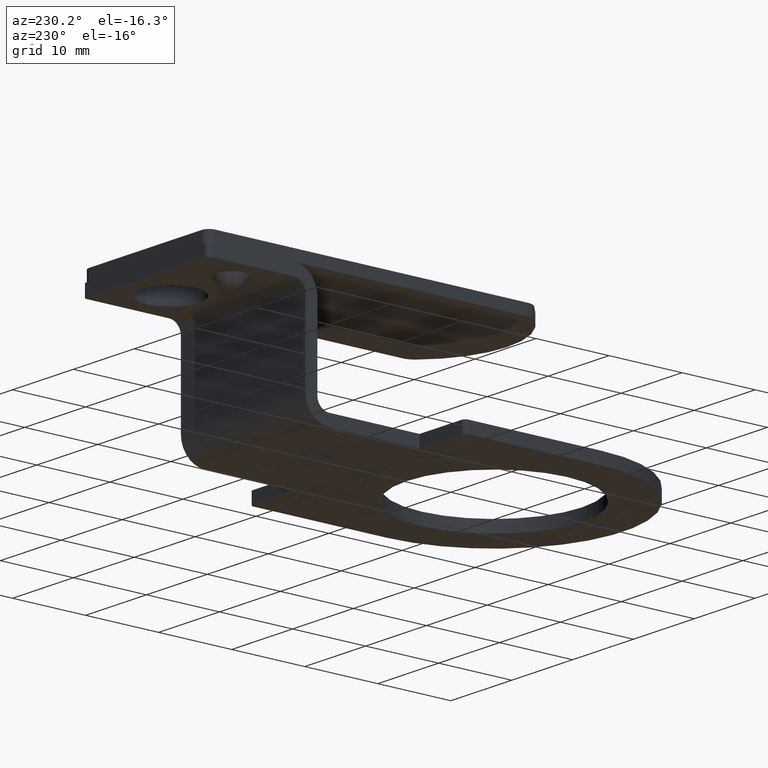
[diagram: clean part render]
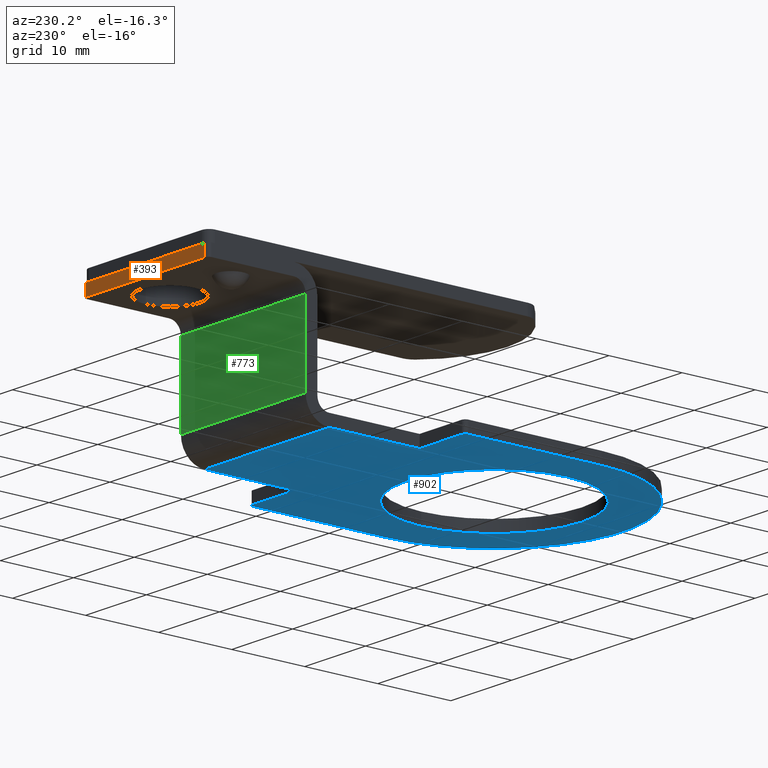
[diagram: same view with three faces highlighted in distinct colors, each labeled with its STEP entity id]
A machine part, auxiliary view with three faces highlighted in distinct colors.
Their STEP definitions:

[orange] entity #393 — the highlighted planar face has unit normal (0, 1, 0).
#328=CARTESIAN_POINT('',(-6.973034844879960,29.491234150719997,17.250000000000000));
#329=VERTEX_POINT('',#328);
#337=CARTESIAN_POINT('',(-6.973034844879960,29.491234150719997,15.649999999999999));
#338=VERTEX_POINT('',#337);
#339=CARTESIAN_POINT('',(-6.973034844879960,29.491234150719997,17.250000000000000));
#340=DIRECTION('',(0.0,0.0,-1.0));
#341=VECTOR('',#340,1.600000000000001);
#342=LINE('',#339,#341);
#343=EDGE_CURVE('',#329,#338,#342,.T.);
#363=CARTESIAN_POINT('',(-7.473034844879960,29.491234150719997,17.250000000000000));
#364=DIRECTION('',(0.0,1.0,0.0));
#365=DIRECTION('',(0.0,0.0,1.0));
#366=AXIS2_PLACEMENT_3D('',#363,#364,#365);
#367=PLANE('',#366);
#368=ORIENTED_EDGE('',*,*,#343,.F.);
#369=CARTESIAN_POINT('',(12.526965155120049,29.491234150719997,17.250000000000000));
#370=VERTEX_POINT('',#369);
#371=CARTESIAN_POINT('',(-6.973034844879960,29.491234150719997,17.250000000000000));
#372=DIRECTION('',(1.0,0.0,0.0));
#373=VECTOR('',#372,19.500000000000007);
#374=LINE('',#371,#373);
#375=EDGE_CURVE('',#329,#370,#374,.T.);
#376=ORIENTED_EDGE('',*,*,#375,.T.);
#377=CARTESIAN_POINT('',(12.526965155120049,29.491234150719997,15.649999999999999));
#378=VERTEX_POINT('',#377);
#379=CARTESIAN_POINT('',(12.526965155120049,29.491234150719997,15.649999999999999));
#380=DIRECTION('',(0.0,0.0,1.0));
#381=VECTOR('',#380,1.600000000000001);
#382=LINE('',#379,#381);
#383=EDGE_CURVE('',#378,#370,#382,.T.);
#384=ORIENTED_EDGE('',*,*,#383,.F.);
#385=CARTESIAN_POINT('',(-6.973034844879960,29.491234150719997,15.649999999999999));
#386=DIRECTION('',(1.0,0.0,0.0));
#387=VECTOR('',#386,19.500000000000007);
#388=LINE('',#385,#387);
#389=EDGE_CURVE('',#338,#378,#388,.T.);
#390=ORIENTED_EDGE('',*,*,#389,.F.);
#391=EDGE_LOOP('',(#368,#376,#384,#390));
#392=FACE_OUTER_BOUND('',#391,.T.);
#393=ADVANCED_FACE('',(#392),#367,.T.);

[blue] entity #902 — the highlighted planar face has unit normal (0, 0, 1).
#179=CARTESIAN_POINT('',(20.426965155120051,-0.008765849279999,0.0));
#180=VERTEX_POINT('',#179);
#187=CARTESIAN_POINT('',(19.926965155120048,0.491234150720001,0.0));
#188=VERTEX_POINT('',#187);
#189=CARTESIAN_POINT('',(19.926965155120048,-0.008765849279999,0.0));
#190=DIRECTION('',(0.0,0.0,1.000000000000000));
#191=DIRECTION('',(0.707106781186549,0.707106781186546,0.0));
#192=AXIS2_PLACEMENT_3D('',#189,#190,#191);
#193=CIRCLE('',#192,0.500000000000000);
#194=EDGE_CURVE('',#180,#188,#193,.T.);
#219=CARTESIAN_POINT('',(20.426965155120044,-18.258765849280003,0.0));
#220=VERTEX_POINT('',#219);
#227=CARTESIAN_POINT('',(20.426965155120044,-18.258765849280003,0.0));
#228=DIRECTION('',(0.0,1.0,0.0));
#229=VECTOR('',#228,18.250000000000004);
#230=LINE('',#227,#229);
#231=EDGE_CURVE('',#220,#180,#230,.T.);
#498=CARTESIAN_POINT('',(13.026965155120049,0.491234150719997,0.0));
#499=VERTEX_POINT('',#498);
#506=CARTESIAN_POINT('',(13.026965155120047,12.891234150719995,2.775558E-016));
#507=VERTEX_POINT('',#506);
#508=CARTESIAN_POINT('',(13.026965155120049,0.491234150719997,0.0));
#509=DIRECTION('',(0.0,1.0,0.0));
#510=VECTOR('',#509,12.399999999999999);
#511=LINE('',#508,#510);
#512=EDGE_CURVE('',#499,#507,#511,.T.);
#555=CARTESIAN_POINT('',(-14.373034844879953,0.491234150719993,0.0));
#556=VERTEX_POINT('',#555);
#563=CARTESIAN_POINT('',(-14.873034844879953,-0.008765849280008,0.0));
#564=VERTEX_POINT('',#563);
#565=CARTESIAN_POINT('',(-14.373034844879953,-0.008765849280008,0.0));
#566=DIRECTION('',(0.0,0.0,1.0));
#567=DIRECTION('',(-0.707106781186549,0.707106781186546,0.0));
#568=AXIS2_PLACEMENT_3D('',#565,#566,#567);
#569=CIRCLE('',#568,0.500000000000000);
#570=EDGE_CURVE('',#556,#564,#569,.T.);
#588=CARTESIAN_POINT('',(-7.473034844879951,0.491234150719997,0.0));
#589=VERTEX_POINT('',#588);
#596=CARTESIAN_POINT('',(-7.473034844879951,0.491234150719997,0.0));
#597=DIRECTION('',(-1.0,0.0,0.0));
#598=VECTOR('',#597,6.900000000000002);
#599=LINE('',#596,#598);
#600=EDGE_CURVE('',#589,#556,#599,.T.);
#661=CARTESIAN_POINT('',(-7.473034844879956,12.891234150719995,2.775558E-016));
#662=VERTEX_POINT('',#661);
#670=CARTESIAN_POINT('',(-7.473034844879956,12.891234150719995,2.775558E-016));
#671=DIRECTION('',(0.0,-1.0,0.0));
#672=VECTOR('',#671,12.399999999999999);
#673=LINE('',#670,#672);
#674=EDGE_CURVE('',#662,#589,#673,.T.);
#793=CARTESIAN_POINT('',(-7.473034844879956,12.891234150719995,2.775558E-016));
#794=DIRECTION('',(1.0,0.0,0.0));
#795=VECTOR('',#794,20.500000000000004);
#796=LINE('',#793,#795);
#797=EDGE_CURVE('',#662,#507,#796,.T.);
#811=CARTESIAN_POINT('',(14.776965155120047,-18.258765849280007,0.0));
#812=VERTEX_POINT('',#811);
#813=CARTESIAN_POINT('',(2.776965155120046,-18.258765849280007,0.0));
#814=DIRECTION('',(0.0,0.0,1.0));
#815=DIRECTION('',(-1.0,0.0,0.0));
#816=AXIS2_PLACEMENT_3D('',#813,#814,#815);
#817=CIRCLE('',#816,12.000000000000002);
#818=EDGE_CURVE('',#812,#812,#817,.T.);
#829=CARTESIAN_POINT('',(-14.873034844879951,-18.258765849280007,0.0));
#830=VERTEX_POINT('',#829);
#837=CARTESIAN_POINT('',(2.776965155120046,-18.258765849280007,0.0));
#838=DIRECTION('',(0.0,0.0,1.0));
#839=DIRECTION('',(-1.0,0.0,0.0));
#840=AXIS2_PLACEMENT_3D('',#837,#838,#839);
#841=CIRCLE('',#840,17.649999999999999);
#842=EDGE_CURVE('',#830,#220,#841,.T.);
#854=CARTESIAN_POINT('',(-14.873034844879953,-0.008765849280008,0.0));
#855=DIRECTION('',(0.0,-1.0,0.0));
#856=VECTOR('',#855,18.250000000000000);
#857=LINE('',#854,#856);
#858=EDGE_CURVE('',#564,#830,#857,.T.);
#871=CARTESIAN_POINT('',(19.926965155120048,0.491234150720001,0.0));
#872=DIRECTION('',(-1.0,0.0,0.0));
#873=VECTOR('',#872,6.899999999999999);
#874=LINE('',#871,#873);
#875=EDGE_CURVE('',#188,#499,#874,.T.);
#882=CARTESIAN_POINT('',(2.776965155120047,-8.225099792446088,0.0));
#883=DIRECTION('',(0.0,0.0,1.0));
#884=DIRECTION('',(1.0,0.0,0.0));
#885=AXIS2_PLACEMENT_3D('',#882,#883,#884);
#886=PLANE('',#885);
#887=ORIENTED_EDGE('',*,*,#194,.F.);
#888=ORIENTED_EDGE('',*,*,#231,.F.);
#889=ORIENTED_EDGE('',*,*,#842,.F.);
#890=ORIENTED_EDGE('',*,*,#858,.F.);
#891=ORIENTED_EDGE('',*,*,#570,.F.);
#892=ORIENTED_EDGE('',*,*,#600,.F.);
#893=ORIENTED_EDGE('',*,*,#674,.F.);
#894=ORIENTED_EDGE('',*,*,#797,.T.);
#895=ORIENTED_EDGE('',*,*,#512,.F.);
#896=ORIENTED_EDGE('',*,*,#875,.F.);
#897=EDGE_LOOP('',(#887,#888,#889,#890,#891,#892,#893,#894,#895,#896));
#898=FACE_OUTER_BOUND('',#897,.T.);
#899=ORIENTED_EDGE('',*,*,#818,.T.);
#900=EDGE_LOOP('',(#899));
#901=FACE_BOUND('',#900,.T.);
#902=ADVANCED_FACE('',(#898,#901),#886,.F.);

[green] entity #773 — the highlighted planar face has unit normal (0, 1, 0).
#514=CARTESIAN_POINT('',(13.026965155120047,16.091234150719998,3.199999999999998));
#515=VERTEX_POINT('',#514);
#523=CARTESIAN_POINT('',(13.026965155120047,16.091234150719998,14.050000000000001));
#524=VERTEX_POINT('',#523);
#525=CARTESIAN_POINT('',(13.026965155120047,16.091234150719998,14.050000000000001));
#526=DIRECTION('',(0.0,0.0,-1.0));
#527=VECTOR('',#526,10.850000000000003);
#528=LINE('',#525,#527);
#529=EDGE_CURVE('',#524,#515,#528,.T.);
#644=CARTESIAN_POINT('',(-7.473034844879960,16.091234150719998,14.050000000000001));
#645=VERTEX_POINT('',#644);
#653=CARTESIAN_POINT('',(-7.473034844879956,16.091234150719998,3.200000000000012));
#654=VERTEX_POINT('',#653);
#655=CARTESIAN_POINT('',(-7.473034844879956,16.091234150719998,3.200000000000012));
#656=DIRECTION('',(0.0,0.0,1.0));
#657=VECTOR('',#656,10.849999999999989);
#658=LINE('',#655,#657);
#659=EDGE_CURVE('',#654,#645,#658,.T.);
#713=CARTESIAN_POINT('',(-7.473034844879960,16.091234150719998,14.050000000000001));
#714=DIRECTION('',(1.0,0.0,0.0));
#715=VECTOR('',#714,20.500000000000007);
#716=LINE('',#713,#715);
#717=EDGE_CURVE('',#645,#524,#716,.T.);
#757=CARTESIAN_POINT('',(13.026965155120047,16.091234150719998,9.797174E-017));
#758=DIRECTION('',(0.0,1.0,0.0));
#759=DIRECTION('',(0.0,0.0,1.0));
#760=AXIS2_PLACEMENT_3D('',#757,#758,#759);
#761=PLANE('',#760);
#762=ORIENTED_EDGE('',*,*,#717,.T.);
#763=ORIENTED_EDGE('',*,*,#529,.T.);
#764=CARTESIAN_POINT('',(-7.473034844879956,16.091234150719998,3.200000000000012));
#765=DIRECTION('',(1.0,0.0,0.0));
#766=VECTOR('',#765,20.500000000000004);
#767=LINE('',#764,#766);
#768=EDGE_CURVE('',#654,#515,#767,.T.);
#769=ORIENTED_EDGE('',*,*,#768,.F.);
#770=ORIENTED_EDGE('',*,*,#659,.T.);
#771=EDGE_LOOP('',(#762,#763,#769,#770));
#772=FACE_OUTER_BOUND('',#771,.T.);
#773=ADVANCED_FACE('',(#772),#761,.T.);